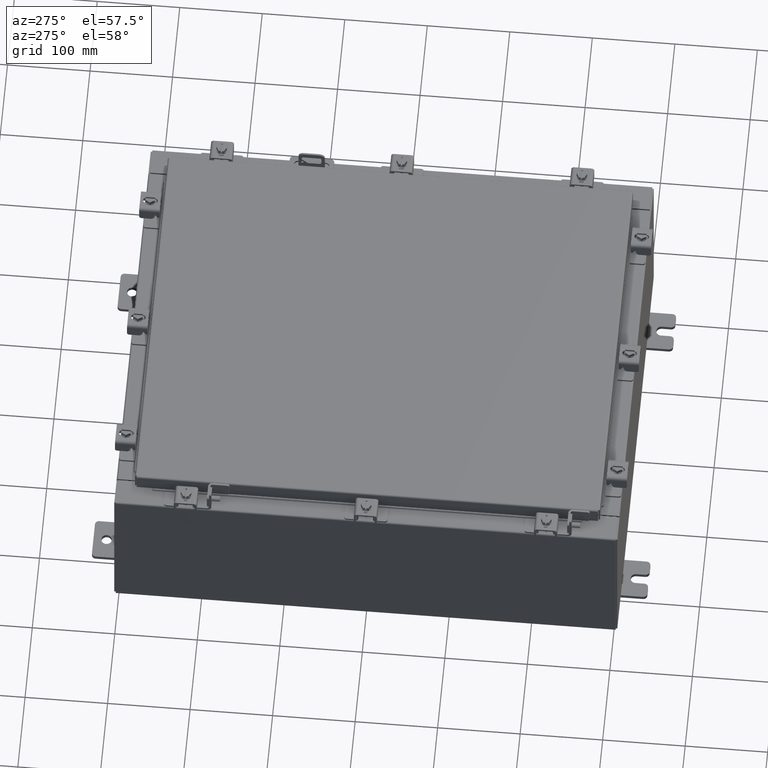
[diagram: clean part render]
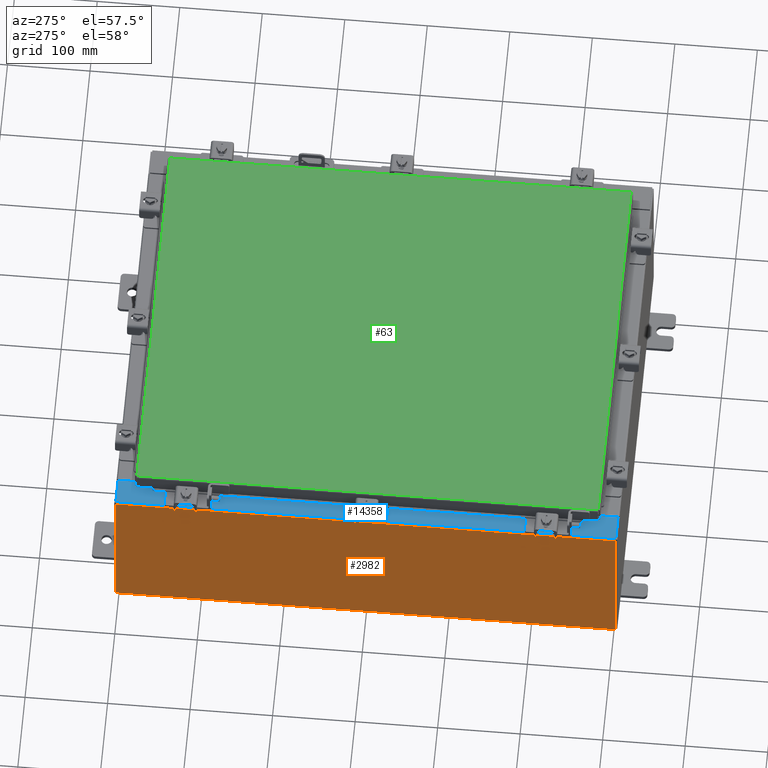
[diagram: same view with three faces highlighted in distinct colors, each labeled with its STEP entity id]
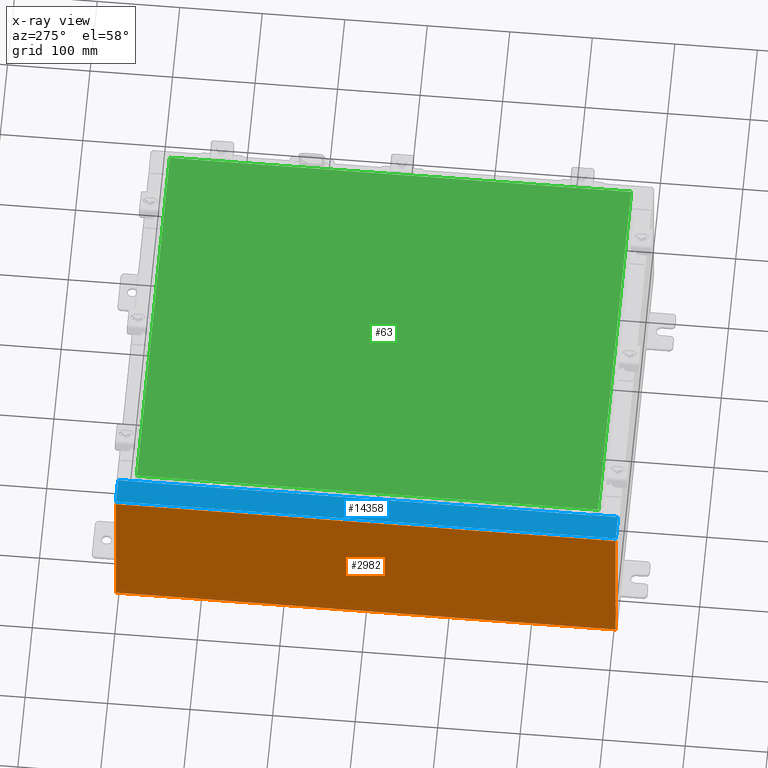
[diagram: x-ray of the same camera — body ghosted, the three highlighted faces saturated]
A machine part, auxiliary view with three faces highlighted in distinct colors.
The next image is the same camera in x-ray (body ghosted, the three faces saturated) — at least one of them is partly hidden behind the body in this view.
Their STEP definitions:

[orange] entity #2982 — the highlighted planar face has unit normal (1, 0, 0).
#177 = EDGE_CURVE ( 'NONE', #7996, #12667, #17307, .T. ) ;
#611 = DIRECTION ( 'NONE',  ( -0.0000000000000000000, 1.000000000000000000, -0.0000000000000000000 ) ) ;
#783 = DIRECTION ( 'NONE',  ( 0.0000000000000000000, 1.000000000000000000, 0.0000000000000000000 ) ) ;
#1190 = VECTOR ( 'NONE', #611, 39.37007874015748100 ) ;
#1584 = ORIENTED_EDGE ( 'NONE', *, *, #177, .T. ) ;
#1672 = CARTESIAN_POINT ( 'NONE',  ( -10.00000000000000000, 11.92530000000000000, 0.01299999999999983600 ) ) ;
#1719 = VECTOR ( 'NONE', #783, 39.37007874015748100 ) ;
#2268 = LINE ( 'NONE', #17482, #1719 ) ;
#2409 = VERTEX_POINT ( 'NONE', #12721 ) ;
#2982 = ADVANCED_FACE ( 'NONE', ( #3562 ), #20559, .F. ) ;
#3562 = FACE_OUTER_BOUND ( 'NONE', #3767, .T. ) ;
#3767 = EDGE_LOOP ( 'NONE', ( #15906, #1584, #13172, #12465 ) ) ;
#4576 = VECTOR ( 'NONE', #7662, 39.37007874015748100 ) ;
#5146 = LINE ( 'NONE', #9375, #4576 ) ;
#6947 = VECTOR ( 'NONE', #14111, 39.37007874015748100 ) ;
#7662 = DIRECTION ( 'NONE',  ( -3.584876173029202900E-015, 0.0000000000000000000, 1.000000000000000000 ) ) ;
#7996 = VERTEX_POINT ( 'NONE', #9948 ) ;
#8353 = EDGE_CURVE ( 'NONE', #12466, #12667, #14489, .T. ) ;
#9375 = CARTESIAN_POINT ( 'NONE',  ( -10.00000000000000000, -11.92530000000000000, -3.610957538630361200E-014 ) ) ;
#9948 = CARTESIAN_POINT ( 'NONE',  ( -10.00000000000002800, 11.92530000000000000, 7.837599999999999200 ) ) ;
#11240 = EDGE_CURVE ( 'NONE', #12466, #2409, #5146, .T. ) ;
#12465 = ORIENTED_EDGE ( 'NONE', *, *, #11240, .T. ) ;
#12466 = VERTEX_POINT ( 'NONE', #13289 ) ;
#12667 = VERTEX_POINT ( 'NONE', #1672 ) ;
#12721 = CARTESIAN_POINT ( 'NONE',  ( -10.00000000000002800, -11.92529999999999500, 7.837599999999999200 ) ) ;
#12860 = CARTESIAN_POINT ( 'NONE',  ( -10.00000000000000000, 11.92530000000000000, -3.610957538630361200E-014 ) ) ;
#13172 = ORIENTED_EDGE ( 'NONE', *, *, #8353, .F. ) ;
#13289 = CARTESIAN_POINT ( 'NONE',  ( -10.00000000000000000, -11.92529999999999800, 0.01299999999999984700 ) ) ;
#14111 = DIRECTION ( 'NONE',  ( 3.584876173029202900E-015, 0.0000000000000000000, -1.000000000000000000 ) ) ;
#14489 = LINE ( 'NONE', #19688, #1190 ) ;
#14595 = EDGE_CURVE ( 'NONE', #2409, #7996, #2268, .T. ) ;
#15283 = AXIS2_PLACEMENT_3D ( 'NONE', #18965, #18829, #18765 ) ;
#15906 = ORIENTED_EDGE ( 'NONE', *, *, #14595, .T. ) ;
#17307 = LINE ( 'NONE', #12860, #6947 ) ;
#17482 = CARTESIAN_POINT ( 'NONE',  ( -10.00000000000002800, -11.92530000000000000, 7.837599999999999200 ) ) ;
#18765 = DIRECTION ( 'NONE',  ( 3.584876173029202900E-015, 0.0000000000000000000, -1.000000000000000000 ) ) ;
#18829 = DIRECTION ( 'NONE',  ( 1.000000000000000000, 0.0000000000000000000, 3.584876173029202900E-015 ) ) ;
#18965 = CARTESIAN_POINT ( 'NONE',  ( -10.00000000000000000, 0.0000000000000000000, -3.610957538630361200E-014 ) ) ;
#19688 = CARTESIAN_POINT ( 'NONE',  ( -10.00000000000000000, 11.92530000000000000, 0.01299999999999984700 ) ) ;
#20559 = PLANE ( 'NONE',  #15283 ) ;

[blue] entity #14358 — the highlighted planar face has unit normal (0, 0, -1).
#157 = VECTOR ( 'NONE', #17446, 39.37007874015748100 ) ;
#237 = LINE ( 'NONE', #4686, #9468 ) ;
#475 = ORIENTED_EDGE ( 'NONE', *, *, #9932, .F. ) ;
#720 = LINE ( 'NONE', #5272, #157 ) ;
#939 = DIRECTION ( 'NONE',  ( -1.000000000000000000, 0.0000000000000000000, -7.132762385546378400E-015 ) ) ;
#1025 = CARTESIAN_POINT ( 'NONE',  ( -8.750050000000030100, -10.63109999999999300, 7.925300000000008900 ) ) ;
#1130 = DIRECTION ( 'NONE',  ( -1.000000000000000000, 0.0000000000000000000, 0.0000000000000000000 ) ) ;
#1202 = VERTEX_POINT ( 'NONE', #16930 ) ;
#1587 = CARTESIAN_POINT ( 'NONE',  ( -8.750050000000030100, 10.59375000000000000, 7.925300000000008900 ) ) ;
#1607 = LINE ( 'NONE', #3623, #18997 ) ;
#1919 = VERTEX_POINT ( 'NONE', #5719 ) ;
#1924 = VERTEX_POINT ( 'NONE', #3026 ) ;
#3026 = CARTESIAN_POINT ( 'NONE',  ( -8.699700000000028400, -10.63109999999999300, 7.925300000000008900 ) ) ;
#3397 = DIRECTION ( 'NONE',  ( 0.0000000000000000000, 1.000000000000000000, 0.0000000000000000000 ) ) ;
#3623 = CARTESIAN_POINT ( 'NONE',  ( -8.712700000000030100, 10.59375000000000200, 7.925300000000008900 ) ) ;
#3714 = EDGE_CURVE ( 'NONE', #9916, #22010, #5441, .T. ) ;
#3923 = EDGE_CURVE ( 'NONE', #12404, #1202, #1607, .T. ) ;
#4109 = CARTESIAN_POINT ( 'NONE',  ( -3.552501257109376000E-014, -11.92529999999998000, 7.925300000000071100 ) ) ;
#4454 = AXIS2_PLACEMENT_3D ( 'NONE', #17610, #7166, #19346 ) ;
#4622 = DIRECTION ( 'NONE',  ( -0.0000000000000000000, 1.000000000000000000, -0.0000000000000000000 ) ) ;
#4675 = EDGE_CURVE ( 'NONE', #16560, #21677, #237, .T. ) ;
#4686 = CARTESIAN_POINT ( 'NONE',  ( -9.912300000000028500, 11.92530000000000000, 7.925300000000000000 ) ) ;
#4714 = CARTESIAN_POINT ( 'NONE',  ( -9.912300000000028500, -11.92529999999999600, 7.925300000000000000 ) ) ;
#4783 = VECTOR ( 'NONE', #1130, 39.37007874015748100 ) ;
#5272 = CARTESIAN_POINT ( 'NONE',  ( -8.699700000000028400, 10.63110000000000200, 7.925300000000008900 ) ) ;
#5308 = DIRECTION ( 'NONE',  ( 1.000000000000000000, 0.0000000000000000000, 0.0000000000000000000 ) ) ;
#5315 = VECTOR ( 'NONE', #7639, 39.37007874015748100 ) ;
#5441 = LINE ( 'NONE', #13545, #18748 ) ;
#5719 = CARTESIAN_POINT ( 'NONE',  ( -8.750050000000030100, -10.59374999999999300, 7.925300000000008900 ) ) ;
#5821 = ORIENTED_EDGE ( 'NONE', *, *, #3923, .F. ) ;
#6070 = CARTESIAN_POINT ( 'NONE',  ( -5.679009539018279500E-014, 11.92530000000000000, 7.925300000000071100 ) ) ;
#6407 = VECTOR ( 'NONE', #939, 39.37007874015748100 ) ;
#6544 = CARTESIAN_POINT ( 'NONE',  ( -8.699700000000028400, 11.92530000000000000, 7.925300000000008900 ) ) ;
#6680 = VECTOR ( 'NONE', #5308, 39.37007874015748100 ) ;
#6939 = LINE ( 'NONE', #6070, #6407 ) ;
#7064 = EDGE_CURVE ( 'NONE', #1919, #9693, #20816, .T. ) ;
#7166 = DIRECTION ( 'NONE',  ( -7.132762385546378400E-015, -0.0000000000000000000, 1.000000000000000000 ) ) ;
#7187 = EDGE_CURVE ( 'NONE', #1202, #1919, #18638, .T. ) ;
#7218 = ORIENTED_EDGE ( 'NONE', *, *, #15575, .F. ) ;
#7222 = ORIENTED_EDGE ( 'NONE', *, *, #12902, .T. ) ;
#7395 = EDGE_CURVE ( 'NONE', #9623, #12404, #19970, .T. ) ;
#7639 = DIRECTION ( 'NONE',  ( 1.000000000000000000, 1.783190596386595000E-015, 7.132762385546378400E-015 ) ) ;
#7684 = EDGE_CURVE ( 'NONE', #16560, #15542, #20236, .T. ) ;
#7757 = ORIENTED_EDGE ( 'NONE', *, *, #7684, .T. ) ;
#9378 = DIRECTION ( 'NONE',  ( -7.132762385546378400E-015, -0.0000000000000000000, 1.000000000000000000 ) ) ;
#9468 = VECTOR ( 'NONE', #4622, 39.37007874015748100 ) ;
#9623 = VERTEX_POINT ( 'NONE', #1587 ) ;
#9648 = DIRECTION ( 'NONE',  ( 1.000000000000000000, 0.0000000000000000000, 0.0000000000000000000 ) ) ;
#9693 = VERTEX_POINT ( 'NONE', #10408 ) ;
#9736 = VERTEX_POINT ( 'NONE', #17534 ) ;
#9892 = CARTESIAN_POINT ( 'NONE',  ( -5.679009539018279500E-014, 0.0000000000000000000, 7.925300000000071100 ) ) ;
#9916 = VERTEX_POINT ( 'NONE', #13108 ) ;
#9932 = EDGE_CURVE ( 'NONE', #9693, #1924, #16597, .T. ) ;
#10408 = CARTESIAN_POINT ( 'NONE',  ( -8.750050000000030100, -10.63109999999999300, 7.925300000000008900 ) ) ;
#10540 = ORIENTED_EDGE ( 'NONE', *, *, #7064, .F. ) ;
#10814 = ORIENTED_EDGE ( 'NONE', *, *, #3714, .T. ) ;
#11034 = ORIENTED_EDGE ( 'NONE', *, *, #4675, .F. ) ;
#11509 = VECTOR ( 'NONE', #3397, 39.37007874015748100 ) ;
#11682 = DIRECTION ( 'NONE',  ( -1.000000000000000000, 0.0000000000000000000, -7.132762385546378400E-015 ) ) ;
#11853 = DIRECTION ( 'NONE',  ( 0.0000000000000000000, 1.000000000000000000, 0.0000000000000000000 ) ) ;
#12030 = CARTESIAN_POINT ( 'NONE',  ( -8.699700000000028400, 0.0000000000000000000, 7.925300000000008900 ) ) ;
#12049 = EDGE_CURVE ( 'NONE', #9916, #9736, #720, .T. ) ;
#12269 = CARTESIAN_POINT ( 'NONE',  ( -8.699700000000028400, -11.92529999999999500, 7.925300000000008900 ) ) ;
#12278 = AXIS2_PLACEMENT_3D ( 'NONE', #9892, #22117, #11682 ) ;
#12404 = VERTEX_POINT ( 'NONE', #16639 ) ;
#12902 = EDGE_CURVE ( 'NONE', #22010, #21677, #6939, .T. ) ;
#13108 = CARTESIAN_POINT ( 'NONE',  ( -8.699700000000028400, 10.63110000000000200, 7.925300000000008900 ) ) ;
#13545 = CARTESIAN_POINT ( 'NONE',  ( -8.699700000000028400, 0.0000000000000000000, 7.925300000000008900 ) ) ;
#14008 = DIRECTION ( 'NONE',  ( -0.0000000000000000000, -1.000000000000000000, -0.0000000000000000000 ) ) ;
#14220 = FACE_OUTER_BOUND ( 'NONE', #20217, .T. ) ;
#14358 = ADVANCED_FACE ( 'NONE', ( #14220 ), #20353, .F. ) ;
#14477 = ORIENTED_EDGE ( 'NONE', *, *, #7395, .F. ) ;
#14481 = CARTESIAN_POINT ( 'NONE',  ( -9.912300000000028500, 11.92530000000000000, 7.925300000000000000 ) ) ;
#14820 = ORIENTED_EDGE ( 'NONE', *, *, #12049, .F. ) ;
#15542 = VERTEX_POINT ( 'NONE', #12269 ) ;
#15575 = EDGE_CURVE ( 'NONE', #9736, #9623, #21816, .T. ) ;
#15687 = ORIENTED_EDGE ( 'NONE', *, *, #17432, .T. ) ;
#15718 = CARTESIAN_POINT ( 'NONE',  ( -8.750050000000030100, 10.59375000000000000, 7.925300000000008900 ) ) ;
#16117 = AXIS2_PLACEMENT_3D ( 'NONE', #19839, #9378, #21572 ) ;
#16560 = VERTEX_POINT ( 'NONE', #4714 ) ;
#16597 = LINE ( 'NONE', #1025, #20676 ) ;
#16639 = CARTESIAN_POINT ( 'NONE',  ( -8.712700000000030100, 10.59375000000000000, 7.925300000000008900 ) ) ;
#16930 = CARTESIAN_POINT ( 'NONE',  ( -8.712700000000030100, -10.59374999999999300, 7.925300000000008900 ) ) ;
#17432 = EDGE_CURVE ( 'NONE', #15542, #1924, #21339, .T. ) ;
#17446 = DIRECTION ( 'NONE',  ( -1.000000000000000000, -4.340572780399910900E-014, 0.0000000000000000000 ) ) ;
#17534 = CARTESIAN_POINT ( 'NONE',  ( -8.750050000000030100, 10.63109999999999800, 7.925300000000008900 ) ) ;
#17607 = ORIENTED_EDGE ( 'NONE', *, *, #7187, .F. ) ;
#17610 = CARTESIAN_POINT ( 'NONE',  ( -8.750050000000030100, 10.61242500000000000, 7.925300000000008900 ) ) ;
#18638 = LINE ( 'NONE', #20187, #4783 ) ;
#18748 = VECTOR ( 'NONE', #11853, 39.37007874015748100 ) ;
#18997 = VECTOR ( 'NONE', #14008, 39.37007874015748100 ) ;
#19346 = DIRECTION ( 'NONE',  ( 1.000000000000000000, 0.0000000000000000000, 0.0000000000000000000 ) ) ;
#19839 = CARTESIAN_POINT ( 'NONE',  ( -8.750050000000030100, -10.61242499999999300, 7.925300000000008900 ) ) ;
#19970 = LINE ( 'NONE', #15718, #6680 ) ;
#20187 = CARTESIAN_POINT ( 'NONE',  ( -8.712700000000030100, -10.59374999999999300, 7.925300000000008900 ) ) ;
#20217 = EDGE_LOOP ( 'NONE', ( #14820, #10814, #7222, #11034, #7757, #15687, #475, #10540, #17607, #5821, #14477, #7218 ) ) ;
#20236 = LINE ( 'NONE', #4109, #5315 ) ;
#20353 = PLANE ( 'NONE',  #12278 ) ;
#20676 = VECTOR ( 'NONE', #9648, 39.37007874015748100 ) ;
#20816 = CIRCLE ( 'NONE', #16117, 0.01867499999999949400 ) ;
#21339 = LINE ( 'NONE', #12030, #11509 ) ;
#21572 = DIRECTION ( 'NONE',  ( 1.000000000000000000, 0.0000000000000000000, 0.0000000000000000000 ) ) ;
#21677 = VERTEX_POINT ( 'NONE', #14481 ) ;
#21816 = CIRCLE ( 'NONE', #4454, 0.01867499999999949400 ) ;
#22010 = VERTEX_POINT ( 'NONE', #6544 ) ;
#22117 = DIRECTION ( 'NONE',  ( 7.132762385546378400E-015, 0.0000000000000000000, -1.000000000000000000 ) ) ;

[green] entity #63 — the highlighted planar face has unit normal (0, 0, -1).
#63 = ADVANCED_FACE ( 'NONE', ( #21917 ), #5995, .F. ) ;
#223 = VERTEX_POINT ( 'NONE', #3327 ) ;
#510 = DIRECTION ( 'NONE',  ( -1.000000000000000000, 0.0000000000000000000, -0.0000000000000000000 ) ) ;
#962 = CARTESIAN_POINT ( 'NONE',  ( -8.990299999999999500, -11.00630000000000100, -2.048885995248197400E-016 ) ) ;
#1196 = CARTESIAN_POINT ( 'NONE',  ( 8.990299999999999500, -11.00630000000000000, -7.512581982576723400E-016 ) ) ;
#2890 = ORIENTED_EDGE ( 'NONE', *, *, #14704, .T. ) ;
#3327 = CARTESIAN_POINT ( 'NONE',  ( -8.990299999999999500, 11.00630000000000100, -2.048885995248197400E-016 ) ) ;
#3626 = VECTOR ( 'NONE', #13369, 39.37007874015748100 ) ;
#3825 = VECTOR ( 'NONE', #7321, 39.37007874015748100 ) ;
#5418 = ORIENTED_EDGE ( 'NONE', *, *, #21097, .T. ) ;
#5439 = LINE ( 'NONE', #17445, #14112 ) ;
#5995 = PLANE ( 'NONE',  #6806 ) ;
#6303 = VECTOR ( 'NONE', #10866, 39.37007874015748100 ) ;
#6806 = AXIS2_PLACEMENT_3D ( 'NONE', #18236, #7132, #510 ) ;
#7132 = DIRECTION ( 'NONE',  ( 0.0000000000000000000, 0.0000000000000000000, -1.000000000000000000 ) ) ;
#7321 = DIRECTION ( 'NONE',  ( 0.0000000000000000000, -1.000000000000000000, 0.0000000000000000000 ) ) ;
#10866 = DIRECTION ( 'NONE',  ( -1.000000000000000000, -0.0000000000000000000, -0.0000000000000000000 ) ) ;
#10878 = LINE ( 'NONE', #17757, #6303 ) ;
#13297 = VERTEX_POINT ( 'NONE', #15786 ) ;
#13369 = DIRECTION ( 'NONE',  ( 0.0000000000000000000, 1.000000000000000000, 0.0000000000000000000 ) ) ;
#14112 = VECTOR ( 'NONE', #19146, 39.37007874015748100 ) ;
#14256 = VERTEX_POINT ( 'NONE', #962 ) ;
#14704 = EDGE_CURVE ( 'NONE', #13297, #18974, #16937, .T. ) ;
#15666 = EDGE_CURVE ( 'NONE', #18974, #223, #10878, .T. ) ;
#15786 = CARTESIAN_POINT ( 'NONE',  ( 8.990299999999999500, -11.00630000000000000, -7.512581982576723400E-016 ) ) ;
#15887 = EDGE_LOOP ( 'NONE', ( #16567, #2890, #17639, #5418 ) ) ;
#16567 = ORIENTED_EDGE ( 'NONE', *, *, #21508, .T. ) ;
#16937 = LINE ( 'NONE', #1196, #3626 ) ;
#17445 = CARTESIAN_POINT ( 'NONE',  ( -8.990299999999999500, -11.00630000000000100, -2.048885995248197400E-016 ) ) ;
#17639 = ORIENTED_EDGE ( 'NONE', *, *, #15666, .T. ) ;
#17757 = CARTESIAN_POINT ( 'NONE',  ( 8.990299999999999500, 11.00630000000000000, -2.048885995248197400E-016 ) ) ;
#18236 = CARTESIAN_POINT ( 'NONE',  ( 0.0000000000000000000, 0.0000000000000000000, 0.0000000000000000000 ) ) ;
#18974 = VERTEX_POINT ( 'NONE', #19224 ) ;
#19146 = DIRECTION ( 'NONE',  ( 1.000000000000000000, -0.0000000000000000000, -0.0000000000000000000 ) ) ;
#19224 = CARTESIAN_POINT ( 'NONE',  ( 8.990299999999999500, 11.00630000000000000, -2.048885995248197400E-016 ) ) ;
#19453 = CARTESIAN_POINT ( 'NONE',  ( -8.990299999999999500, 11.00630000000000100, -2.048885995248197400E-016 ) ) ;
#21097 = EDGE_CURVE ( 'NONE', #223, #14256, #21763, .T. ) ;
#21508 = EDGE_CURVE ( 'NONE', #14256, #13297, #5439, .T. ) ;
#21763 = LINE ( 'NONE', #19453, #3825 ) ;
#21917 = FACE_OUTER_BOUND ( 'NONE', #15887, .T. ) ;